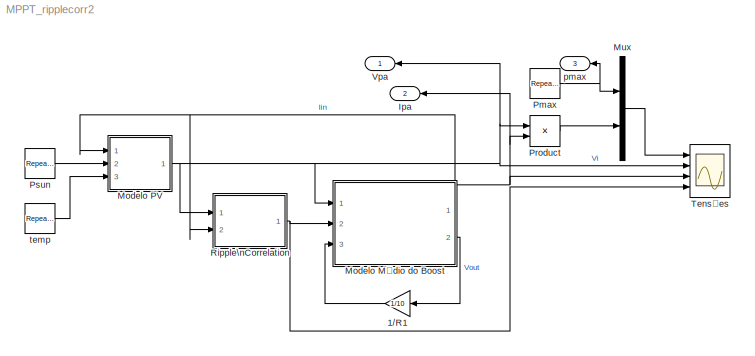
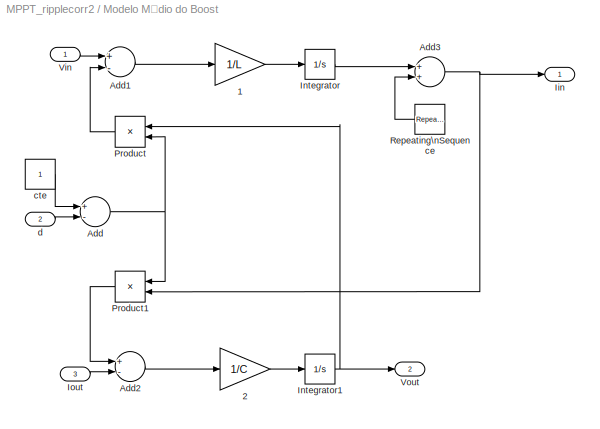
MODEL MPPT_ripplecorr2
KIND model
CONFIG InitFcn = % Ponto de linearização\nD = 0.5;\nL = 0.1;\nC = 0.01;\nR = 10;\nVo = 24;\nLeq = L/(1-D)^2;\nN = 1/(1-D);
BLOCK [Gain] 1//R1
  Gain = 1/10
  OutDataType = sfix(16)
  OutDataTypeMode = Inherit via internal rule
  OutDataTypeStr = Inherit: Inherit via internal rule
  OutScaling = 2^0
  ParamDataTypeStr = Inherit: Inherit via internal rule
  ParameterDataType = sfix(16)
  ParameterDataTypeMode = Inherit via internal rule
  ParameterScaling = 2^0
  SID = 1
  SaturateOnIntegerOverflow = off
BLOCK [Outport] Ipa
  IconDisplay = Port number
  OutDataType = sfix(16)
  OutScaling = 2^0
  Port = 2
  SID = 53
BLOCK [SubSystem] Modelo Médio do Boost
  FunctionWithSeparateData = off
  MaskCallbackString = |||
  MaskDescription = São entradas do bloco:\nVin: Tensão de entrada\nIout: Corrente de saída\nd: ciclo de trabalho\n\nSão saídas do bloco:\nVout: Tensão de saída\nIin: Corrente de entrada\n\nDevem ser especificados a indutância, a capacitância e os seus valores iniciais para a utilização do modelo.
  MaskEnableString = on,on,on,on
  MaskHideContents = off
  MaskIconFrame = on
  MaskIconOpaque = on
  MaskIconRotate = none
  MaskIconUnits = autoscale
  MaskPortRotate = default
  MaskPromptString = Indutância|Corrente inicial|Capacitância|Tensão inicial
  MaskStyleString = edit,edit,edit,edit
  MaskToolTipString = on,on,on,on
  MaskTunableValueString = on,on,on,on
  MaskType = Modelo de Pequenos Sinais do Boost
  MaskValueString = 0.1|0|0.01|24
  MaskVariables = L=@1;Iini=@2;C=@3;Vini=@4;
  MaskVisibilityString = on,on,on,on
  MinAlgLoopOccurrences = off
  Opaque = off
  Ports = [3, 2]
  PropExecContextOutsideSubsystem = off
  RTWSystemCode = Auto
  RequestExecContextInheritance = off
  SID = 2
BLOCK [Gain] Modelo Médio do Boost/1
  Gain = 1/L
  OutDataType = sfix(16)
  OutDataTypeMode = Inherit via internal rule
  OutDataTypeStr = Inherit: Inherit via internal rule
  OutScaling = 2^0
  ParamDataTypeStr = Inherit: Inherit via internal rule
  ParameterDataType = sfix(16)
  ParameterDataTypeMode = Inherit via internal rule
  ParameterScaling = 2^0
  SID = 6
  SaturateOnIntegerOverflow = off
BLOCK [Gain] Modelo Médio do Boost/2
  Gain = 1/C
  OutDataType = sfix(16)
  OutDataTypeMode = Inherit via internal rule
  OutDataTypeStr = Inherit: Inherit via internal rule
  OutScaling = 2^0
  ParamDataTypeStr = Inherit: Inherit via internal rule
  ParameterDataType = sfix(16)
  ParameterDataTypeMode = Inherit via internal rule
  ParameterScaling = 2^0
  SID = 7
  SaturateOnIntegerOverflow = off
BLOCK [Sum] Modelo Médio do Boost/Add
  InputSameDT = off
  Inputs = +-
  OutDataType = sfix(16)
  OutDataTypeMode = Inherit via internal rule
  OutDataTypeStr = Inherit: Inherit via internal rule
  OutScaling = 2^-10
  Ports = [2, 1]
  SID = 8
  SaturateOnIntegerOverflow = off
BLOCK [Sum] Modelo Médio do Boost/Add1
  InputSameDT = off
  Inputs = +-
  OutDataType = sfix(16)
  OutDataTypeMode = Inherit via internal rule
  OutDataTypeStr = Inherit: Inherit via internal rule
  OutScaling = 2^-10
  Ports = [2, 1]
  SID = 9
  SaturateOnIntegerOverflow = off
BLOCK [Sum] Modelo Médio do Boost/Add2
  InputSameDT = off
  Inputs = +-
  OutDataType = sfix(16)
  OutDataTypeMode = Inherit via internal rule
  OutDataTypeStr = Inherit: Inherit via internal rule
  OutScaling = 2^-10
  Ports = [2, 1]
  SID = 10
  SaturateOnIntegerOverflow = off
BLOCK [Sum] Modelo Médio do Boost/Add3
  InputSameDT = off
  OutDataType = sfix(16)
  OutDataTypeMode = Inherit via internal rule
  OutDataTypeStr = Inherit: Inherit via internal rule
  OutScaling = 2^-10
  Ports = [2, 1]
  SID = 11
  SaturateOnIntegerOverflow = off
BLOCK [Outport] Modelo Médio do Boost/Iin
  IconDisplay = Port number
  OutDataType = sfix(16)
  OutScaling = 2^0
  SID = 18
BLOCK [Integrator] Modelo Médio do Boost/Integrator
  InitialCondition = Iini
  Ports = [1, 1]
  SID = 12
BLOCK [Integrator] Modelo Médio do Boost/Integrator1
  InitialCondition = Vini
  Ports = [1, 1]
  SID = 13
BLOCK [Inport] Modelo Médio do Boost/Iout
  IconDisplay = Port number
  OutDataType = sfix(16)
  OutScaling = 2^0
  Port = 3
  SID = 5
BLOCK [Product] Modelo Médio do Boost/Product
  InputSameDT = off
  OutDataType = sfix(16)
  OutDataTypeMode = Inherit via internal rule
  OutDataTypeStr = Inherit: Inherit via internal rule
  OutScaling = 2^0
  Ports = [2, 1]
  SID = 14
  SaturateOnIntegerOverflow = off
BLOCK [Product] Modelo Médio do Boost/Product1
  InputSameDT = off
  OutDataType = sfix(16)
  OutDataTypeMode = Inherit via internal rule
  OutDataTypeStr = Inherit: Inherit via internal rule
  OutScaling = 2^0
  Ports = [2, 1]
  SID = 15
  SaturateOnIntegerOverflow = off
BLOCK [Reference] Modelo Médio do Boost/Repeating\nSequence  REF=simulink/Sources/Repeating\nSequence
  FunctionWithSeparateData = off
  Ports = [0, 1]
  RTWMemSecDataConstants = Inherit from model
  RTWMemSecDataInternal = Inherit from model
  RTWMemSecDataParameters = Inherit from model
  RTWMemSecFuncExecute = Inherit from model
  RTWMemSecFuncInitTerm = Inherit from model
  SID = 16
  ShowPortLabels = FromPortIcon
  SourceBlock = simulink/Sources/Repeating\nSequence
  SourceType = Repeating table
  SystemSampleTime = -1
  rep_seq_t = [0 0.5/100 1/100]
  rep_seq_y = [-1 1 -1]
BLOCK [Inport] Modelo Médio do Boost/Vin
  IconDisplay = Port number
  OutDataType = sfix(16)
  OutScaling = 2^0
  SID = 3
BLOCK [Outport] Modelo Médio do Boost/Vout
  IconDisplay = Port number
  OutDataType = sfix(16)
  OutScaling = 2^0
  Port = 2
  SID = 19
BLOCK [Constant] Modelo Médio do Boost/cte
  OutDataType = sfix(16)
  OutScaling = 2^0
  SID = 17
BLOCK [Inport] Modelo Médio do Boost/d
  IconDisplay = Port number
  OutDataType = sfix(16)
  OutScaling = 2^0
  Port = 2
  SID = 4
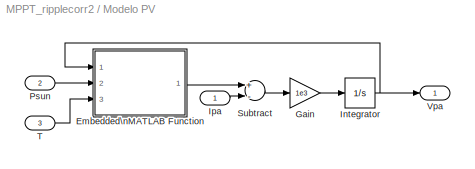
BLOCK [SubSystem] Modelo PV
  FunctionWithSeparateData = off
  MaskHideContents = off
  MinAlgLoopOccurrences = off
  Opaque = off
  Ports = [3, 1]
  PropExecContextOutsideSubsystem = off
  RTWSystemCode = Auto
  RequestExecContextInheritance = off
  SID = 20
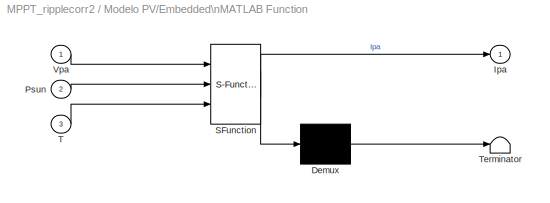
BLOCK [SubSystem] Modelo PV/Embedded\nMATLAB Function
  FunctionWithSeparateData = off
  MaskDescription = Embedded MATLAB block
  MaskDisplay = disp('PV_Array');
  MaskHideContents = off
  MaskIconFrame = on
  MaskIconOpaque = off
  MaskIconRotate = none
  MaskIconUnits = autoscale
  MaskPortRotate = default
  MaskSelfModifiable = on
  MaskType = Stateflow
  MinAlgLoopOccurrences = off
  Opaque = off
  PermitHierarchicalResolution = ExplicitOnly
  Ports = [3, 1]
  PropExecContextOutsideSubsystem = off
  RTWSystemCode = Auto
  RequestExecContextInheritance = off
  SID = 24
BLOCK [Demux] Modelo PV/Embedded\nMATLAB Function/ Demux 
  Outputs = 1
  Ports = [1, 1]
  SID = 9
BLOCK [S-Function] Modelo PV/Embedded\nMATLAB Function/ SFunction 
  EnableBusSupport = on
  FunctionName = sf_sfun
  PortCounts = [3 2]
  Ports = [3, 2]
  SID = 8
  Tag = Stateflow S-Function MPPT_ripplecorr2 2
BLOCK [Terminator] Modelo PV/Embedded\nMATLAB Function/ Terminator 
  SID = 11
BLOCK [Outport] Modelo PV/Embedded\nMATLAB Function/Ipa
  IconDisplay = Port number
  OutDataType = sfix(16)
  OutScaling = 2^0
  SID = 7
BLOCK [Inport] Modelo PV/Embedded\nMATLAB Function/Psun
  IconDisplay = Port number
  OutDataType = sfix(16)
  OutScaling = 2^0
  Port = 2
  SID = 2
BLOCK [Inport] Modelo PV/Embedded\nMATLAB Function/T
  IconDisplay = Port number
  OutDataType = sfix(16)
  OutScaling = 2^0
  Port = 3
  SID = 3
BLOCK [Inport] Modelo PV/Embedded\nMATLAB Function/Vpa
  IconDisplay = Port number
  OutDataType = sfix(16)
  OutScaling = 2^0
  SID = 1
BLOCK [Gain] Modelo PV/Gain
  Gain = 1e3
  OutDataType = sfix(16)
  OutDataTypeMode = Inherit via internal rule
  OutDataTypeStr = Inherit: Inherit via internal rule
  OutScaling = 2^0
  ParamDataTypeStr = Inherit: Inherit via internal rule
  ParameterDataType = sfix(16)
  ParameterDataTypeMode = Inherit via internal rule
  ParameterScaling = 2^0
  SID = 25
  SaturateOnIntegerOverflow = off
BLOCK [Integrator] Modelo PV/Integrator
  LimitOutput = on
  LowerSaturationLimit = 0
  Ports = [1, 1]
  SID = 26
BLOCK [Inport] Modelo PV/Ipa
  IconDisplay = Port number
  OutDataType = sfix(16)
  OutScaling = 2^0
  SID = 21
BLOCK [Inport] Modelo PV/Psun
  IconDisplay = Port number
  OutDataType = sfix(16)
  OutScaling = 2^0
  Port = 2
  SID = 22
BLOCK [Sum] Modelo PV/Subtract
  InputSameDT = off
  Inputs = +-
  OutDataType = sfix(16)
  OutDataTypeMode = Inherit via internal rule
  OutDataTypeStr = Inherit: Inherit via internal rule
  OutScaling = 2^-10
  Ports = [2, 1]
  SID = 27
  SaturateOnIntegerOverflow = off
BLOCK [Inport] Modelo PV/T
  IconDisplay = Port number
  OutDataType = sfix(16)
  OutScaling = 2^0
  Port = 3
  SID = 23
BLOCK [Outport] Modelo PV/Vpa
  IconDisplay = Port number
  OutDataType = sfix(16)
  OutScaling = 2^0
  SID = 28
BLOCK [Mux] Mux
  DisplayOption = bar
  Inputs = 2
  Ports = [2, 1]
  SID = 29
BLOCK [Reference] Pmax  REF=simulink/Sources/Repeating\nSequence
  FunctionWithSeparateData = off
  Ports = [0, 1]
  RTWMemSecDataConstants = Inherit from model
  RTWMemSecDataInternal = Inherit from model
  RTWMemSecDataParameters = Inherit from model
  RTWMemSecFuncExecute = Inherit from model
  RTWMemSecFuncInitTerm = Inherit from model
  SID = 30
  ShowPortLabels = FromPortIcon
  SourceBlock = simulink/Sources/Repeating\nSequence
  SourceType = Repeating table
  SystemSampleTime = -1
  rep_seq_t = [0 2 2 4 4 6]
  rep_seq_y = [98.6721 98.6721 187.4175 187.4175 98.6721 98.6721]
BLOCK [Product] Product
  InputSameDT = off
  OutDataType = sfix(16)
  OutDataTypeMode = Inherit via internal rule
  OutDataTypeStr = Inherit: Inherit via internal rule
  OutScaling = 2^0
  Ports = [2, 1]
  SID = 31
  SaturateOnIntegerOverflow = off
BLOCK [Reference] Psun  REF=simulink/Sources/Repeating\nSequence
  FunctionWithSeparateData = off
  Ports = [0, 1]
  RTWMemSecDataConstants = Inherit from model
  RTWMemSecDataInternal = Inherit from model
  RTWMemSecDataParameters = Inherit from model
  RTWMemSecFuncExecute = Inherit from model
  RTWMemSecFuncInitTerm = Inherit from model
  SID = 32
  ShowPortLabels = FromPortIcon
  SourceBlock = simulink/Sources/Repeating\nSequence
  SourceType = Repeating table
  SystemSampleTime = -1
  rep_seq_t = [0 2 2 4 4 6]
  rep_seq_y = [500 500 1000 1000 500 500]
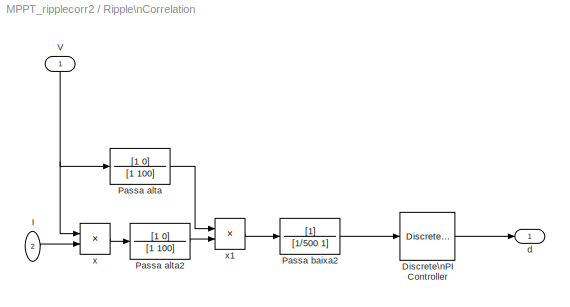
BLOCK [SubSystem] Ripple\nCorrelation
  FunctionWithSeparateData = off
  MaskHideContents = off
  MinAlgLoopOccurrences = off
  Opaque = off
  Ports = [2, 1]
  PropExecContextOutsideSubsystem = off
  RTWSystemCode = Auto
  RequestExecContextInheritance = off
  SID = 33
BLOCK [Reference] Ripple\nCorrelation/Discrete\nPI Controller  REF=powerlib_extras/Discrete \nControl Blocks/Discrete\nPI Controller
  DialogController = POWERSYS.PowerSysDialog
  FunctionWithSeparateData = off
  Init = 0
  Ki = -0.1
  Kp = -0.01
  Par_Limits = [.9 0]
  Ports = [1, 1]
  RTWMemSecDataConstants = Inherit from model
  RTWMemSecDataInternal = Inherit from model
  RTWMemSecDataParameters = Inherit from model
  RTWMemSecFuncExecute = Inherit from model
  RTWMemSecFuncInitTerm = Inherit from model
  SID = 55
  ShowPortLabels = FromPortIcon
  SourceBlock = powerlib_extras/Discrete \nControl Blocks/Discrete\nPI Controller
  SourceType = Discrete PI Controller
  SystemSampleTime = -1
  Ts = 1e-3
BLOCK [Inport] Ripple\nCorrelation/I
  IconDisplay = Port number
  OutDataType = sfix(16)
  OutScaling = 2^0
  Port = 2
  SID = 35
BLOCK [TransferFcn] Ripple\nCorrelation/Passa alta
  Denominator = [1 100]
  Numerator = [1 0]
  SID = 39
BLOCK [TransferFcn] Ripple\nCorrelation/Passa alta2
  Denominator = [1 100]
  Numerator = [1 0]
  SID = 40
BLOCK [TransferFcn] Ripple\nCorrelation/Passa baixa2
  Denominator = [1/500 1]
  SID = 42
BLOCK [Inport] Ripple\nCorrelation/V
  IconDisplay = Port number
  OutDataType = sfix(16)
  OutScaling = 2^0
  SID = 34
BLOCK [Outport] Ripple\nCorrelation/d
  IconDisplay = Port number
  OutDataType = sfix(16)
  OutScaling = 2^0
  SID = 49
BLOCK [Product] Ripple\nCorrelation/x
  InputSameDT = off
  OutDataType = sfix(16)
  OutDataTypeMode = Inherit via internal rule
  OutDataTypeStr = Inherit: Inherit via internal rule
  OutScaling = 2^0
  Ports = [2, 1]
  SID = 46
  SaturateOnIntegerOverflow = off
BLOCK [Product] Ripple\nCorrelation/x1
  InputSameDT = off
  OutDataType = sfix(16)
  OutDataTypeMode = Inherit via internal rule
  OutDataTypeStr = Inherit: Inherit via internal rule
  OutScaling = 2^0
  Ports = [2, 1]
  SID = 47
  SaturateOnIntegerOverflow = off
BLOCK [Scope] Tensões
  DataFormat = StructureWithTime
  Floating = off
  LimitDataPoints = off
  NumInputPorts = 4
  Ports = [4]
  SID = 50
  SampleTime = 0
  SaveName = ScopeData1
  TimeRange = 6
  YMax = 250~40~10~0.8
  YMin = -50~0~-2~0
  ZoomMode = xonly
BLOCK [Outport] Vpa
  IconDisplay = Port number
  OutDataType = sfix(16)
  OutScaling = 2^0
  SID = 52
BLOCK [Outport] pmax
  IconDisplay = Port number
  OutDataType = sfix(16)
  OutScaling = 2^0
  Port = 3
  SID = 54
BLOCK [Reference] temp  REF=simulink/Sources/Repeating\nSequence
  FunctionWithSeparateData = off
  Ports = [0, 1]
  RTWMemSecDataConstants = Inherit from model
  RTWMemSecDataInternal = Inherit from model
  RTWMemSecDataParameters = Inherit from model
  RTWMemSecFuncExecute = Inherit from model
  RTWMemSecFuncInitTerm = Inherit from model
  SID = 51
  ShowPortLabels = FromPortIcon
  SourceBlock = simulink/Sources/Repeating\nSequence
  SourceType = Repeating table
  SystemSampleTime = -1
  rep_seq_t = [0 2 2 4 4 6]
  rep_seq_y = [25 25 40 40 25 25]
LINE 1//R1:1 -> Modelo Médio do Boost:3
LINE Modelo Médio do Boost/1:1 -> Modelo Médio do Boost/Integrator:1
LINE Modelo Médio do Boost/2:1 -> Modelo Médio do Boost/Integrator1:1
LINE Modelo Médio do Boost/Add1:1 -> Modelo Médio do Boost/1:1
LINE Modelo Médio do Boost/Add2:1 -> Modelo Médio do Boost/2:1
NET Modelo Médio do Boost/Add3:1 -> Modelo Médio do Boost/Iin:1, Modelo Médio do Boost/Product1:2
NET Modelo Médio do Boost/Add:1 -> Modelo Médio do Boost/Product1:1, Modelo Médio do Boost/Product:2
NET Modelo Médio do Boost/Integrator1:1 -> Modelo Médio do Boost/Product:1, Modelo Médio do Boost/Vout:1
LINE Modelo Médio do Boost/Integrator:1 -> Modelo Médio do Boost/Add3:1
LINE Modelo Médio do Boost/Iout:1 -> Modelo Médio do Boost/Add2:2
LINE Modelo Médio do Boost/Product1:1 -> Modelo Médio do Boost/Add2:1
LINE Modelo Médio do Boost/Product:1 -> Modelo Médio do Boost/Add1:2
LINE Modelo Médio do Boost/Repeating\nSequence:1 -> Modelo Médio do Boost/Add3:2
LINE Modelo Médio do Boost/Vin:1 -> Modelo Médio do Boost/Add1:1
LINE Modelo Médio do Boost/cte:1 -> Modelo Médio do Boost/Add:1
LINE Modelo Médio do Boost/d:1 -> Modelo Médio do Boost/Add:2
NET Modelo Médio do Boost:1 -> Ipa:1, Modelo PV:1, Product:2, Ripple\nCorrelation:2, Tensões:3
LINE Modelo Médio do Boost:2 -> 1//R1:1
LINE Modelo PV/Embedded\nMATLAB Function/ Demux :1 -> Modelo PV/Embedded\nMATLAB Function/ Terminator :1
LINE Modelo PV/Embedded\nMATLAB Function/ SFunction :1 -> Modelo PV/Embedded\nMATLAB Function/ Demux :1
LINE Modelo PV/Embedded\nMATLAB Function/ SFunction :2 -> Modelo PV/Embedded\nMATLAB Function/Ipa:1
LINE Modelo PV/Embedded\nMATLAB Function/Psun:1 -> Modelo PV/Embedded\nMATLAB Function/ SFunction :2
LINE Modelo PV/Embedded\nMATLAB Function/T:1 -> Modelo PV/Embedded\nMATLAB Function/ SFunction :3
LINE Modelo PV/Embedded\nMATLAB Function/Vpa:1 -> Modelo PV/Embedded\nMATLAB Function/ SFunction :1
LINE Modelo PV/Embedded\nMATLAB Function:1 -> Modelo PV/Subtract:1
LINE Modelo PV/Gain:1 -> Modelo PV/Integrator:1
NET Modelo PV/Integrator:1 -> Modelo PV/Embedded\nMATLAB Function:1, Modelo PV/Vpa:1
LINE Modelo PV/Ipa:1 -> Modelo PV/Subtract:2
LINE Modelo PV/Psun:1 -> Modelo PV/Embedded\nMATLAB Function:2
LINE Modelo PV/Subtract:1 -> Modelo PV/Gain:1
LINE Modelo PV/T:1 -> Modelo PV/Embedded\nMATLAB Function:3
NET Modelo PV:1 -> Modelo Médio do Boost:1, Product:1, Ripple\nCorrelation:1, Tensões:2, Vpa:1
LINE Mux:1 -> Tensões:1
NET Pmax:1 -> Mux:1, pmax:1
LINE Product:1 -> Mux:2
LINE Psun:1 -> Modelo PV:2
LINE Ripple\nCorrelation/Discrete\nPI Controller:1 -> Ripple\nCorrelation/d:1
LINE Ripple\nCorrelation/I:1 -> Ripple\nCorrelation/x:2
LINE Ripple\nCorrelation/Passa alta2:1 -> Ripple\nCorrelation/x1:2
LINE Ripple\nCorrelation/Passa alta:1 -> Ripple\nCorrelation/x1:1
LINE Ripple\nCorrelation/Passa baixa2:1 -> Ripple\nCorrelation/Discrete\nPI Controller:1
NET Ripple\nCorrelation/V:1 -> Ripple\nCorrelation/Passa alta:1, Ripple\nCorrelation/x:1
LINE Ripple\nCorrelation/x1:1 -> Ripple\nCorrelation/Passa baixa2:1
LINE Ripple\nCorrelation/x:1 -> Ripple\nCorrelation/Passa alta2:1
NET Ripple\nCorrelation:1 -> Modelo Médio do Boost:2, Tensões:4
LINE temp:1 -> Modelo PV:3
note: NET lines group one-source signal fan-out (src -> all destinations, sorted); 1:1 wires keep LINE
CHART Modelo PV/Embedded\nMATLAB Function states=1 transitions=1
  STATE_LABEL 'eML_blk_kernel()'
